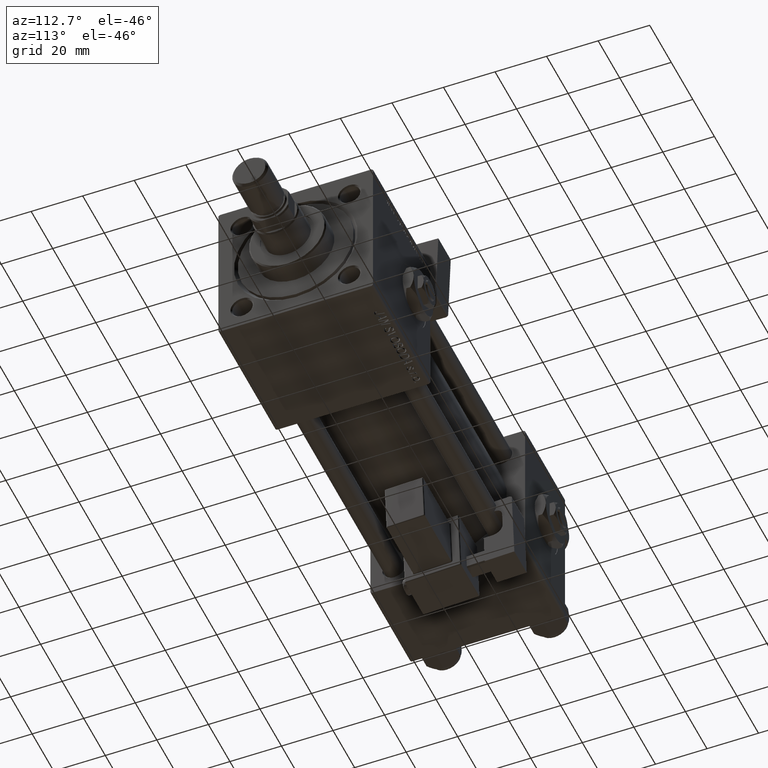
[diagram: clean part render]
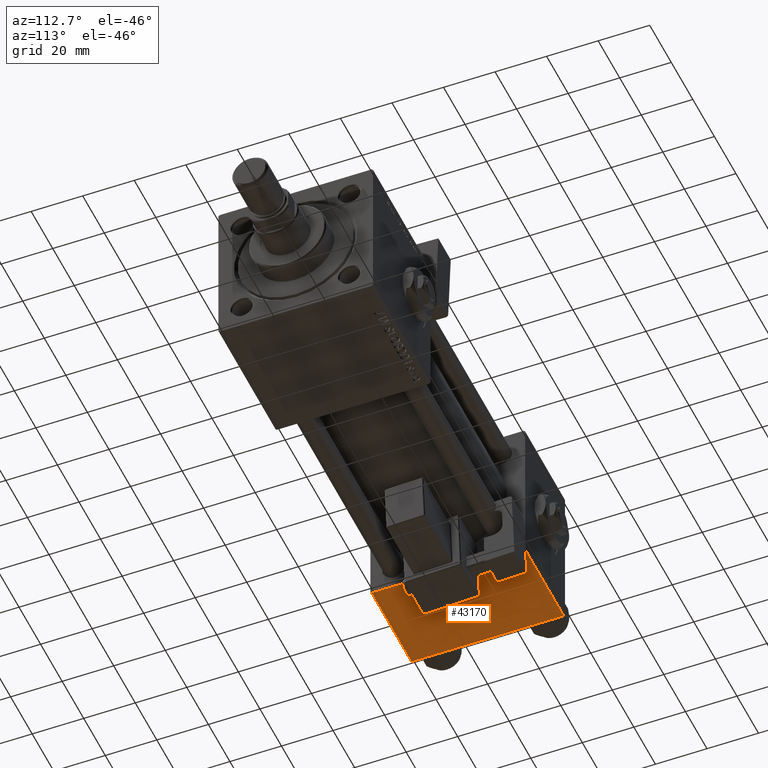
[diagram: same view with one face highlighted and labeled with its STEP entity id]
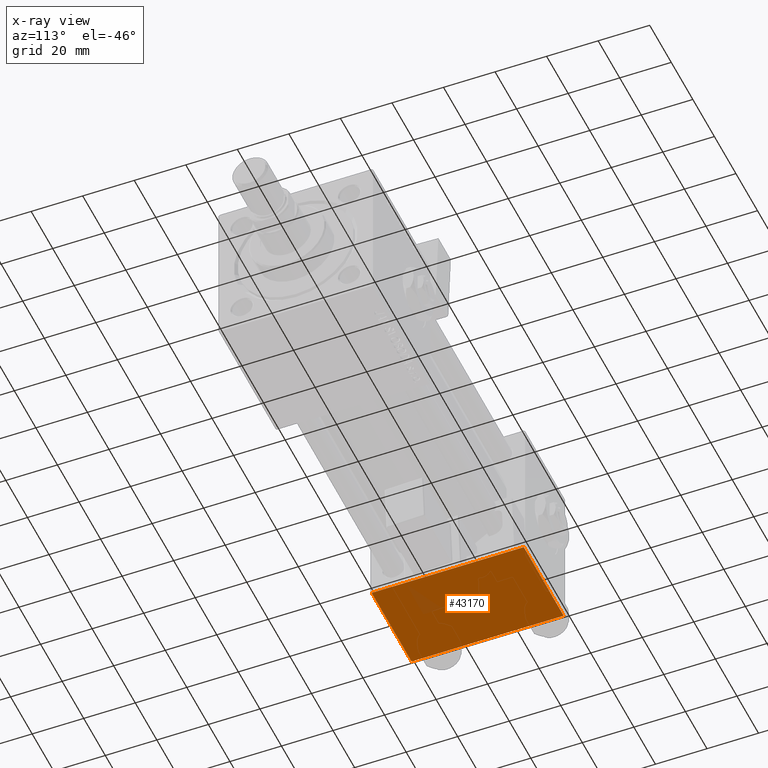
[diagram: x-ray of the same camera — body ghosted, the highlighted face saturated]
A machine part, auxiliary view. The second image highlights one B-rep face of the part: STEP entity #43170.
The next image is the same camera in x-ray: the body ghosted, the highlighted face saturated — about 3% of this face is hidden behind the body in this view.
In plain terms, the highlighted planar face has unit normal (0, 0, -1).
Its self-contained STEP definition (entity closure, byte-faithful):
#3885 = EDGE_CURVE ( 'NONE', #52902, #49127, #52131, .T. ) ;
#3890 = EDGE_CURVE ( 'NONE', #10401, #52902, #11526, .T. ) ;
#5463 = DIRECTION ( 'NONE',  ( -1.000000000000000000, 0.000000000000000000, 0.000000000000000000 ) ) ;
#6817 = CARTESIAN_POINT ( 'NONE',  ( 37.00000000000000000, 29.99999999999999289, -30.00000000000000000 ) ) ;
#7528 = PLANE ( 'NONE',  #52146 ) ;
#10401 = VERTEX_POINT ( 'NONE', #25446 ) ;
#11142 = FACE_OUTER_BOUND ( 'NONE', #17355, .T. ) ;
#11526 = LINE ( 'NONE', #6817, #50455 ) ;
#13217 = CARTESIAN_POINT ( 'NONE',  ( 0.000000000000000000, 29.99999999999999289, -30.00000000000000000 ) ) ;
#13594 = CARTESIAN_POINT ( 'NONE',  ( 37.00000000000000000, 29.49999999999997868, -30.00000000000000000 ) ) ;
#14071 = CARTESIAN_POINT ( 'NONE',  ( 0.000000000000000000, -29.50000000000001066, -30.00000000000000711 ) ) ;
#17355 = EDGE_LOOP ( 'NONE', ( #35962, #40180, #49355, #23099 ) ) ;
#21581 = LINE ( 'NONE', #13217, #51329 ) ;
#23099 = ORIENTED_EDGE ( 'NONE', *, *, #3885, .T. ) ;
#25320 = CARTESIAN_POINT ( 'NONE',  ( 37.00000000000000000, 29.99999999999999289, -30.00000000000000000 ) ) ;
#25446 = CARTESIAN_POINT ( 'NONE',  ( 37.00000000000000000, 29.49999999999997868, -30.00000000000000000 ) ) ;
#25649 = VECTOR ( 'NONE', #5463, 1000.000000000000000 ) ;
#26574 = VECTOR ( 'NONE', #42247, 1000.000000000000000 ) ;
#28933 = DIRECTION ( 'NONE',  ( 0.000000000000000000, 1.000000000000000000, 1.156482317317871725E-16 ) ) ;
#32833 = DIRECTION ( 'NONE',  ( 0.000000000000000000, 1.156482317317871725E-16, -1.000000000000000000 ) ) ;
#33632 = LINE ( 'NONE', #13594, #26574 ) ;
#35962 = ORIENTED_EDGE ( 'NONE', *, *, #48931, .F. ) ;
#37085 = EDGE_CURVE ( 'NONE', #38958, #10401, #33632, .T. ) ;
#38958 = VERTEX_POINT ( 'NONE', #48066 ) ;
#40180 = ORIENTED_EDGE ( 'NONE', *, *, #37085, .T. ) ;
#40183 = DIRECTION ( 'NONE',  ( 0.000000000000000000, -1.000000000000000000, -1.156482317317871725E-16 ) ) ;
#42247 = DIRECTION ( 'NONE',  ( 1.000000000000000000, 0.000000000000000000, 0.000000000000000000 ) ) ;
#43170 = ADVANCED_FACE ( 'NONE', ( #11142 ), #7528, .T. ) ;
#46314 = DIRECTION ( 'NONE',  ( 0.000000000000000000, -1.000000000000000000, -1.156482317317871725E-16 ) ) ;
#48066 = CARTESIAN_POINT ( 'NONE',  ( 0.000000000000000000, 29.49999999999997868, -30.00000000000000000 ) ) ;
#48931 = EDGE_CURVE ( 'NONE', #38958, #49127, #21581, .T. ) ;
#49127 = VERTEX_POINT ( 'NONE', #49576 ) ;
#49355 = ORIENTED_EDGE ( 'NONE', *, *, #3890, .T. ) ;
#49576 = CARTESIAN_POINT ( 'NONE',  ( 0.000000000000000000, -29.50000000000000000, -30.00000000000000711 ) ) ;
#49811 = CARTESIAN_POINT ( 'NONE',  ( 37.00000000000000000, -29.50000000000000000, -30.00000000000000711 ) ) ;
#50455 = VECTOR ( 'NONE', #40183, 1000.000000000000000 ) ;
#51329 = VECTOR ( 'NONE', #46314, 1000.000000000000000 ) ;
#52131 = LINE ( 'NONE', #14071, #25649 ) ;
#52146 = AXIS2_PLACEMENT_3D ( 'NONE', #25320, #32833, #28933 ) ;
#52902 = VERTEX_POINT ( 'NONE', #49811 ) ;